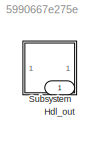
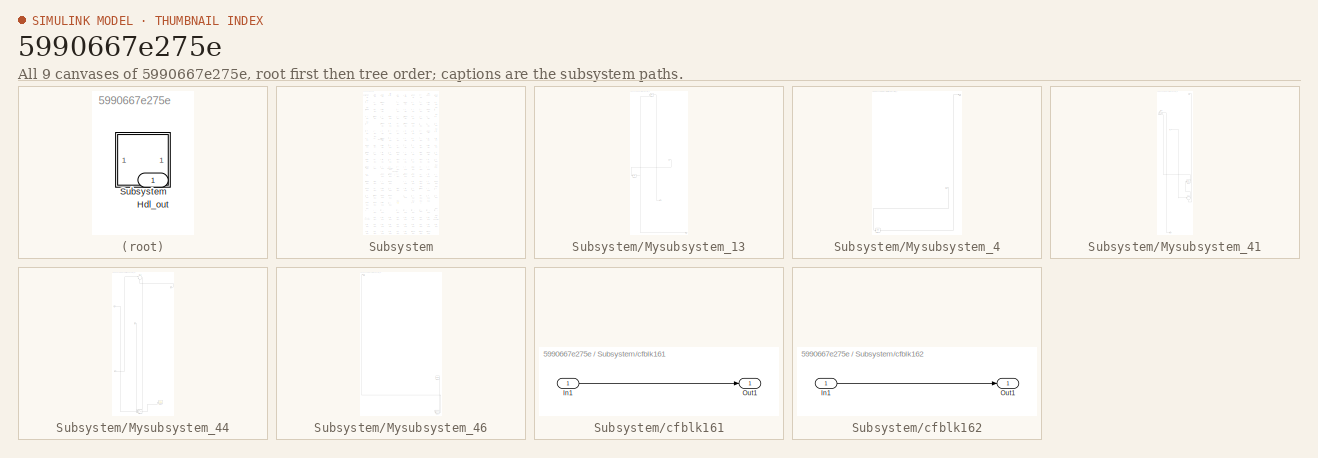
[diagram: thumbnail index - all 9 canvases of the model, root first then tree order]
MODEL slx_5990667e275e
KIND model
CONFIG AbsTol = auto
CONFIG EnableMultiTasking = off
CONFIG FixedStep = auto
CONFIG MaxStep = auto
CONFIG MinStep = auto
CONFIG RelTol = 1e-3
CONFIG SampleTimeConstraint = Unconstrained
CONFIG SolverName = VariableStepAuto
CONFIG StartTime = 0.0
CONFIG StopTime = 10.0
BLOCK [Outport] Hdl_out
  OutDataTypeStr = uint8
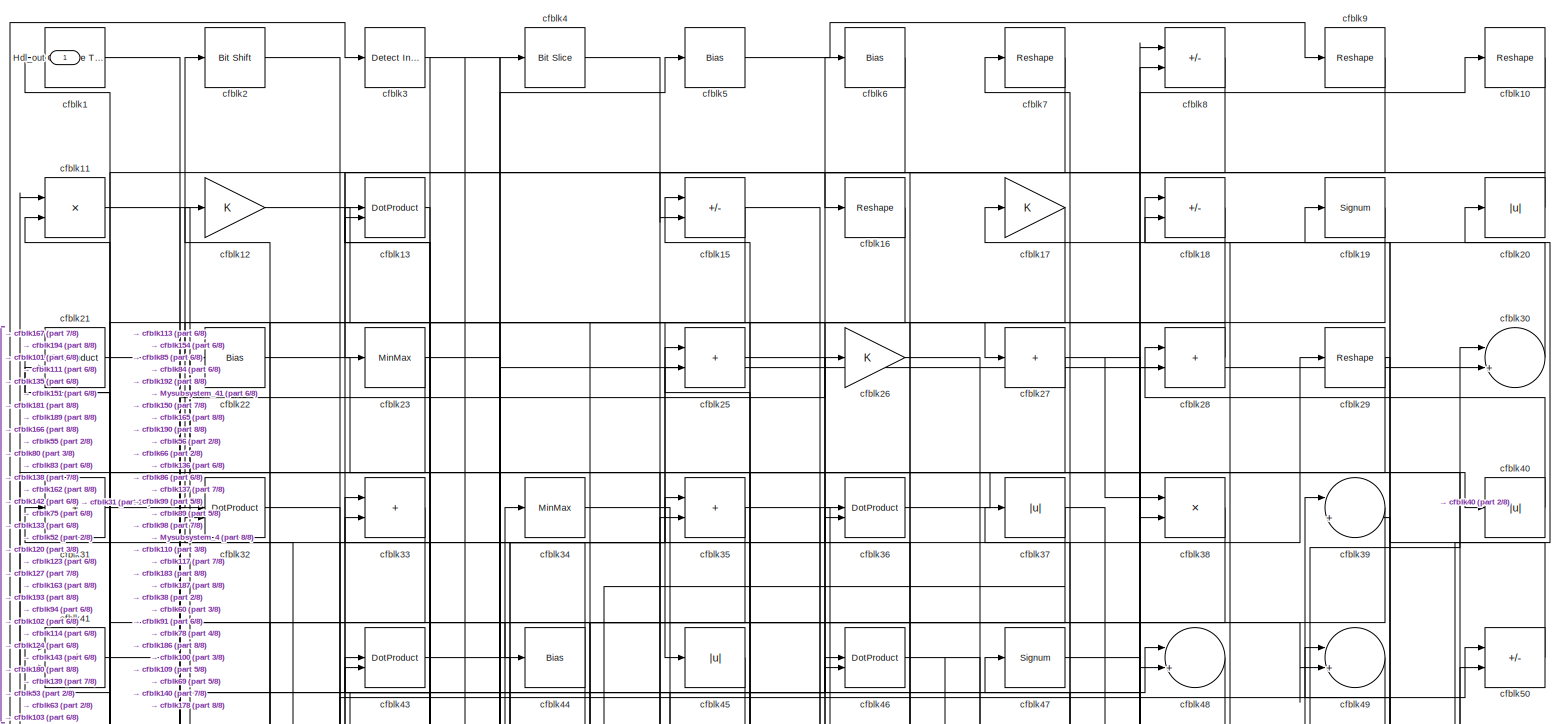
[diagram: Subsystem - part 1/8, full width, top band]
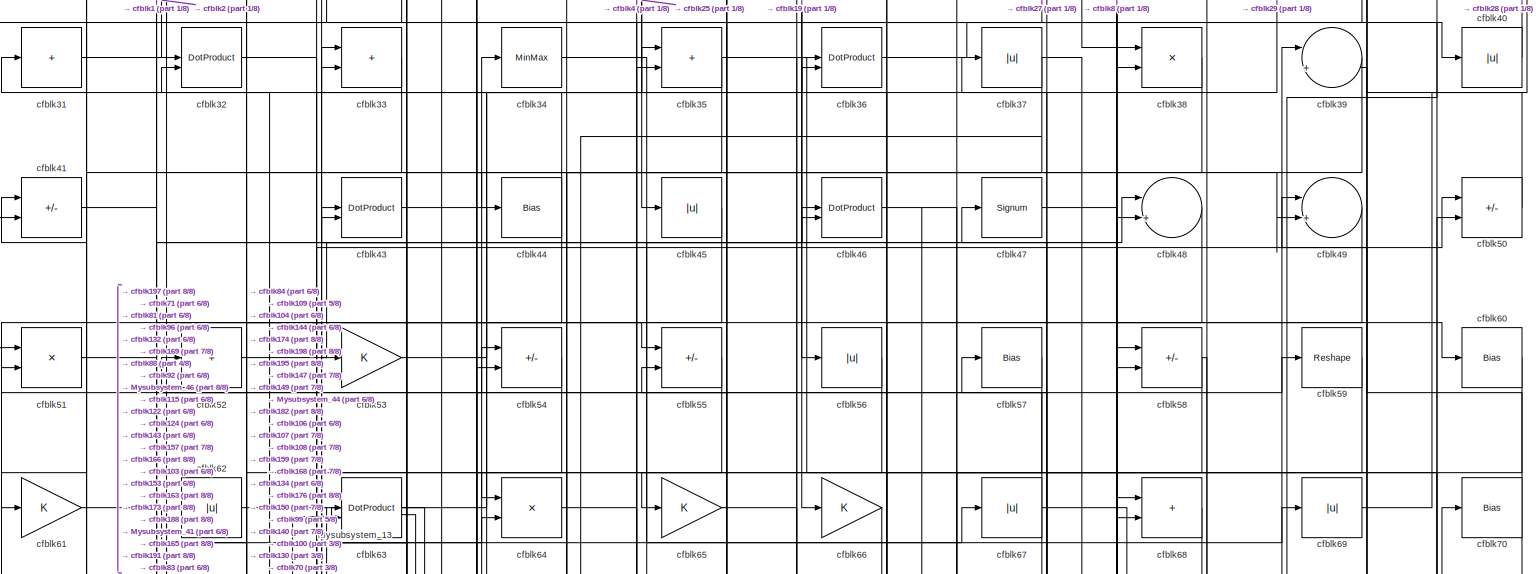
[diagram: Subsystem - part 2/8, full width, top band]
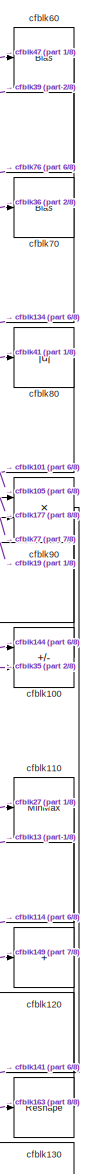
[diagram: Subsystem - part 3/8, middle right region]
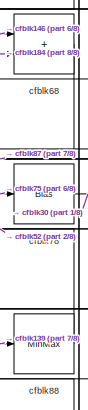
[diagram: Subsystem - part 4/8, middle right region]
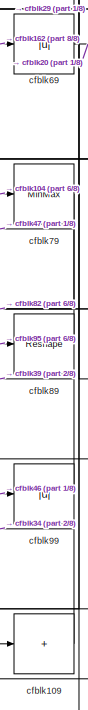
[diagram: Subsystem - part 5/8, middle right region]
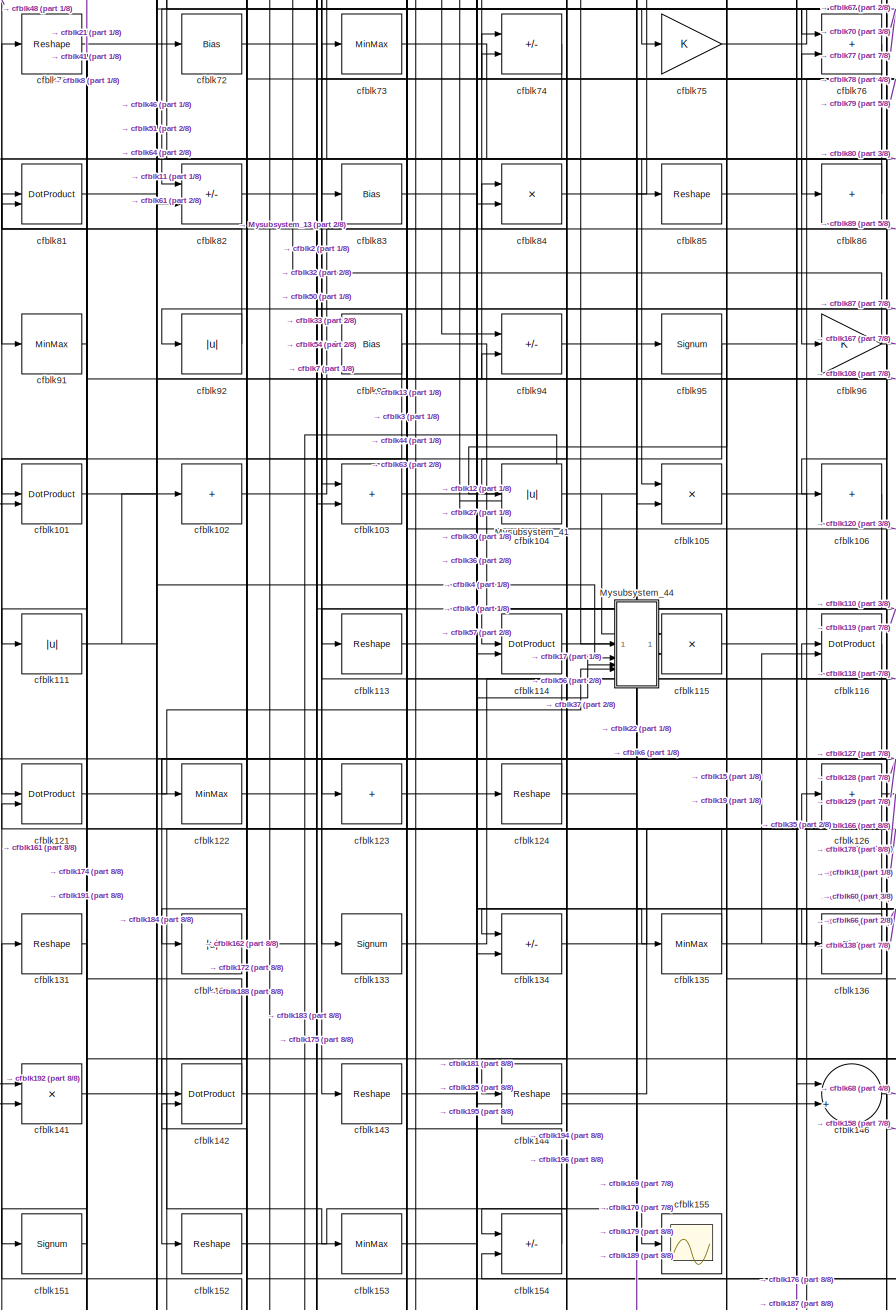
[diagram: Subsystem - part 6/8, middle left region]
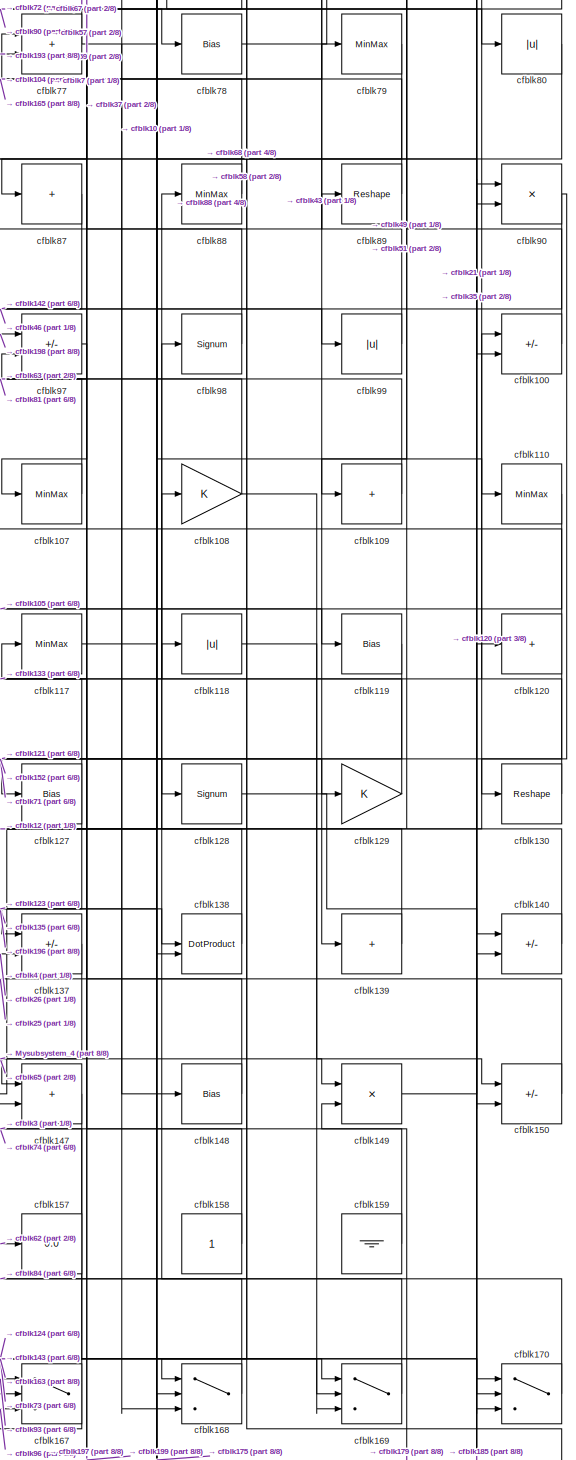
[diagram: Subsystem - part 7/8, middle right region]
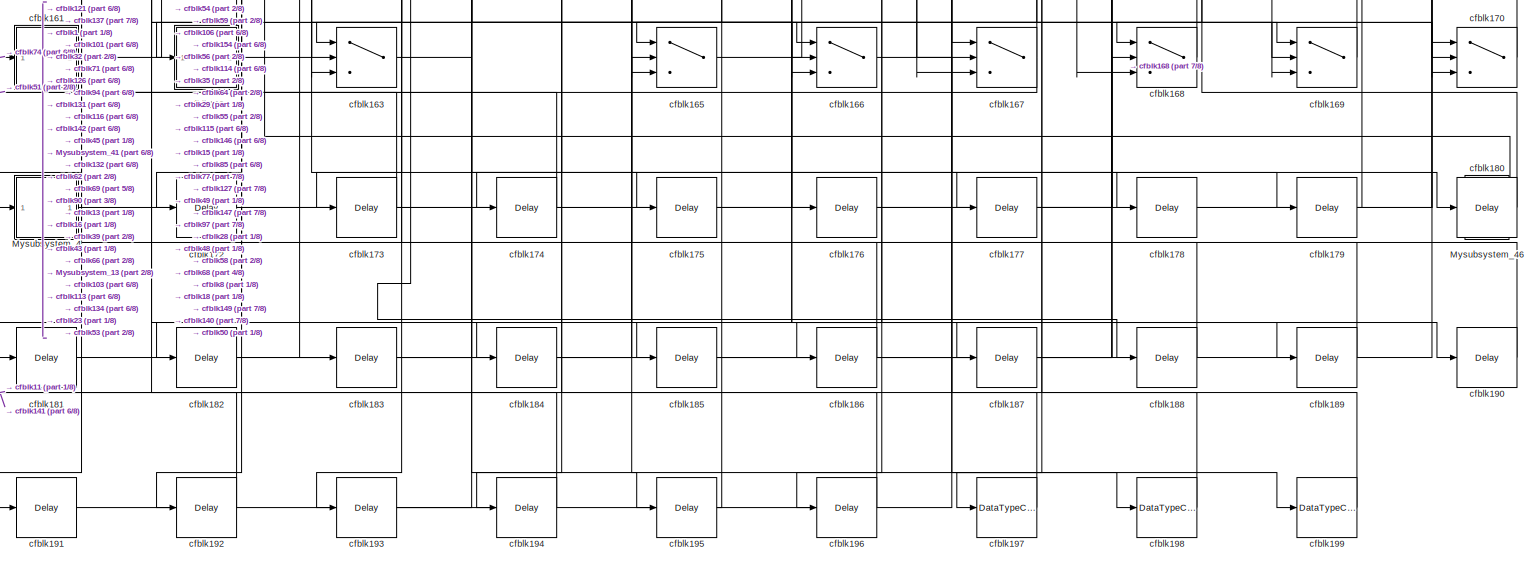
[diagram: Subsystem - part 8/8, full width, bottom band]
BLOCK [SubSystem] Subsystem
BLOCK [Outport] Subsystem/Hdl_out
  OutDataTypeStr = uint8
BLOCK [SubSystem] Subsystem/Mysubsystem_13
  RTWFcnName = Mysubsystem_13
  RTWFcnNameOpts = User specified
  RTWFileNameOpts = Use function name
  RTWSystemCode = Reusable function
  TreatAsAtomicUnit = on
BLOCK [Inport] Subsystem/Mysubsystem_13/In1
BLOCK [Outport] Subsystem/Mysubsystem_13/Out1
BLOCK [Outport] Subsystem/Mysubsystem_13/Out2
  Port = 2
BLOCK [Bias] Subsystem/Mysubsystem_13/cfblk112
  Bias = 0.0
  SaturateOnIntegerOverflow = off
BLOCK [Bias] Subsystem/Mysubsystem_13/cfblk14
  Bias = 0.0
  SaturateOnIntegerOverflow = off
BLOCK [SubSystem] Subsystem/Mysubsystem_4
  RTWFcnName = Mysubsystem_4
  RTWFcnNameOpts = User specified
  RTWFileNameOpts = Use function name
  RTWSystemCode = Reusable function
  TreatAsAtomicUnit = on
BLOCK [Inport] Subsystem/Mysubsystem_4/In1
BLOCK [Outport] Subsystem/Mysubsystem_4/Out1
BLOCK [Delay] Subsystem/Mysubsystem_4/cfblk171
  InputPortMap = u0
  SampleTime = 1
BLOCK [SubSystem] Subsystem/Mysubsystem_41
  RTWFcnName = Mysubsystem_41
  RTWFcnNameOpts = User specified
  RTWFileNameOpts = Use function name
  RTWSystemCode = Reusable function
  TreatAsAtomicUnit = on
BLOCK [Inport] Subsystem/Mysubsystem_41/In1
BLOCK [Inport] Subsystem/Mysubsystem_41/In2
  Port = 2
BLOCK [Outport] Subsystem/Mysubsystem_41/Out1
BLOCK [MinMax] Subsystem/Mysubsystem_41/cfblk125
BLOCK [Sum] Subsystem/Mysubsystem_41/cfblk145
  Inputs = |++
BLOCK [Gain] Subsystem/Mysubsystem_41/cfblk42
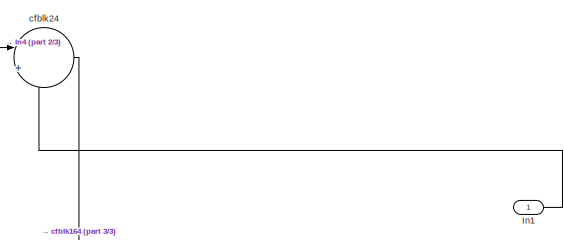
[diagram: Subsystem/Mysubsystem_44 - part 1/3, top right region]
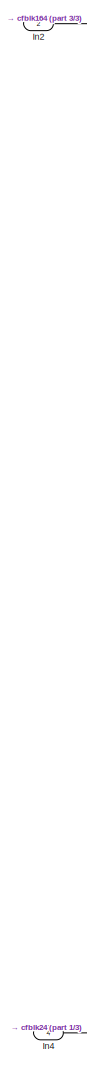
[diagram: Subsystem/Mysubsystem_44 - part 2/3, middle left region]
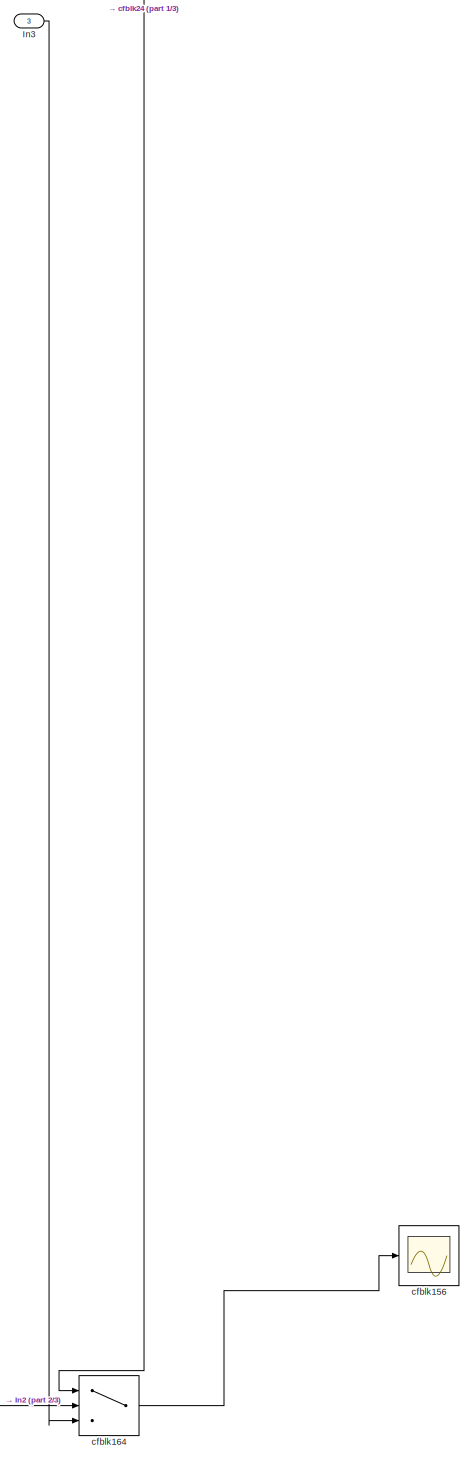
[diagram: Subsystem/Mysubsystem_44 - part 3/3, bottom center region]
BLOCK [SubSystem] Subsystem/Mysubsystem_44
  RTWFcnName = Mysubsystem_44
  RTWFcnNameOpts = User specified
  RTWFileNameOpts = Use function name
  RTWSystemCode = Reusable function
  TreatAsAtomicUnit = on
BLOCK [Inport] Subsystem/Mysubsystem_44/In1
BLOCK [Inport] Subsystem/Mysubsystem_44/In2
  Port = 2
BLOCK [Inport] Subsystem/Mysubsystem_44/In3
  Port = 3
BLOCK [Inport] Subsystem/Mysubsystem_44/In4
  Port = 4
BLOCK [Scope] Subsystem/Mysubsystem_44/cfblk156
  Floating = off
  NumInputPorts = 1
  ScopeSpecificationString = Simulink.scopes.TimeScopeBlockCfg('CurrentConfiguration', extmgr.ConfigurationSet(extmgr.Configuration('Core','General UI',true),extmgr.Configuration('Core','Source UI',true),extmgr.Configuration('Sources','WiredSimulink',true,'DataLoggingVariableName','ScopeData2','DataLoggingSaveFormat','Array','DataLoggingLimitDataPoints',true,'DataLoggingDecimation','1'),extmgr.Configuration('Visuals','Time Do...<+868ch>
BLOCK [Switch] Subsystem/Mysubsystem_44/cfblk164
  InputSameDT = off
  SaturateOnIntegerOverflow = off
BLOCK [Sum] Subsystem/Mysubsystem_44/cfblk24
  Inputs = |++
BLOCK [SubSystem] Subsystem/Mysubsystem_46
  RTWFcnName = Mysubsystem_46
  RTWFcnNameOpts = User specified
  RTWFileNameOpts = Use function name
  RTWSystemCode = Reusable function
  TreatAsAtomicUnit = on
BLOCK [Outport] Subsystem/Mysubsystem_46/Out1
BLOCK [Reference] Subsystem/Mysubsystem_46/cfblk160  REF=hdlsllib/Sources/Counter
Free-Running
  SourceBlock = hdlsllib/Sources/Counter\nFree-Running
  SourceType = Counter Free-Running
BLOCK [DataTypeConversion] Subsystem/Mysubsystem_46/cfblk200
  OutDataTypeStr = uint8
  RndMeth = Floor
  SaturateOnIntegerOverflow = off
BLOCK [Reference] Subsystem/cfblk1  REF=hdlsllib/Logic and Bit
Operations/Compare
To Constant
  SourceBlock = hdlsllib/Logic and Bit\nOperations/Compare\nTo Constant
  SourceType = Compare To Constant
BLOCK [Reshape] Subsystem/cfblk10
BLOCK [Sum] Subsystem/cfblk100
  IconShape = rectangular
  Inputs = +-
  OutDataTypeStr = uint8
BLOCK [DotProduct] Subsystem/cfblk101
  OutDataTypeStr = uint8
BLOCK [Sum] Subsystem/cfblk102
  IconShape = rectangular
  Inputs = +
  OutDataTypeStr = uint8
BLOCK [Sum] Subsystem/cfblk103
  IconShape = rectangular
  OutDataTypeStr = uint8
BLOCK [Abs] Subsystem/cfblk104
  OutDataTypeStr = uint8
  SaturateOnIntegerOverflow = off
BLOCK [Product] Subsystem/cfblk105
  Inputs = */
  OutDataTypeStr = uint8
  RndMeth = Zero
  SaturateOnIntegerOverflow = on
BLOCK [Sum] Subsystem/cfblk106
  IconShape = rectangular
  Inputs = +
  OutDataTypeStr = uint8
BLOCK [MinMax] Subsystem/cfblk107
  OutDataTypeStr = uint8
BLOCK [Gain] Subsystem/cfblk108
  OutDataTypeStr = uint8
BLOCK [Sum] Subsystem/cfblk109
  IconShape = rectangular
  Inputs = +
  OutDataTypeStr = uint8
BLOCK [Product] Subsystem/cfblk11
  Inputs = */
  OutDataTypeStr = uint8
  RndMeth = Zero
  SaturateOnIntegerOverflow = on
BLOCK [MinMax] Subsystem/cfblk110
  OutDataTypeStr = uint8
BLOCK [Abs] Subsystem/cfblk111
  OutDataTypeStr = uint8
  SaturateOnIntegerOverflow = off
BLOCK [Reshape] Subsystem/cfblk113
BLOCK [DotProduct] Subsystem/cfblk114
  OutDataTypeStr = uint8
BLOCK [Product] Subsystem/cfblk115
  Inputs = */
  OutDataTypeStr = uint8
  RndMeth = Zero
  SaturateOnIntegerOverflow = on
BLOCK [DotProduct] Subsystem/cfblk116
  OutDataTypeStr = uint8
BLOCK [MinMax] Subsystem/cfblk117
  OutDataTypeStr = uint8
BLOCK [Abs] Subsystem/cfblk118
  OutDataTypeStr = uint8
  SaturateOnIntegerOverflow = off
BLOCK [Bias] Subsystem/cfblk119
  Bias = 0.0
  SaturateOnIntegerOverflow = off
BLOCK [Gain] Subsystem/cfblk12
  OutDataTypeStr = uint8
BLOCK [Sum] Subsystem/cfblk120
  IconShape = rectangular
  Inputs = +
  OutDataTypeStr = uint8
BLOCK [DotProduct] Subsystem/cfblk121
  OutDataTypeStr = uint8
BLOCK [MinMax] Subsystem/cfblk122
  OutDataTypeStr = uint8
BLOCK [Sum] Subsystem/cfblk123
  IconShape = rectangular
  Inputs = +
  OutDataTypeStr = uint8
BLOCK [Reshape] Subsystem/cfblk124
BLOCK [Sum] Subsystem/cfblk126
  IconShape = rectangular
  Inputs = +
  OutDataTypeStr = uint8
BLOCK [Bias] Subsystem/cfblk127
  Bias = 0.0
  SaturateOnIntegerOverflow = off
BLOCK [Signum] Subsystem/cfblk128
BLOCK [Gain] Subsystem/cfblk129
  OutDataTypeStr = uint8
BLOCK [DotProduct] Subsystem/cfblk13
  OutDataTypeStr = uint8
BLOCK [Reshape] Subsystem/cfblk130
BLOCK [Reshape] Subsystem/cfblk131
BLOCK [Abs] Subsystem/cfblk132
  OutDataTypeStr = uint8
  SaturateOnIntegerOverflow = off
BLOCK [Signum] Subsystem/cfblk133
BLOCK [Sum] Subsystem/cfblk134
  IconShape = rectangular
  Inputs = +-
  OutDataTypeStr = uint8
BLOCK [MinMax] Subsystem/cfblk135
  OutDataTypeStr = uint8
BLOCK [Bias] Subsystem/cfblk136
  Bias = 0.0
  SaturateOnIntegerOverflow = off
BLOCK [Sum] Subsystem/cfblk137
  IconShape = rectangular
  Inputs = +-
  OutDataTypeStr = uint8
BLOCK [DotProduct] Subsystem/cfblk138
  OutDataTypeStr = uint8
BLOCK [Sum] Subsystem/cfblk139
  IconShape = rectangular
  Inputs = +
  OutDataTypeStr = uint8
BLOCK [Sum] Subsystem/cfblk140
  IconShape = rectangular
  Inputs = +-
  OutDataTypeStr = uint8
BLOCK [Product] Subsystem/cfblk141
  Inputs = */
  OutDataTypeStr = uint8
  RndMeth = Zero
  SaturateOnIntegerOverflow = on
BLOCK [DotProduct] Subsystem/cfblk142
  OutDataTypeStr = uint8
BLOCK [Reshape] Subsystem/cfblk143
BLOCK [Reshape] Subsystem/cfblk144
BLOCK [Sum] Subsystem/cfblk146
  Inputs = |++
  OutDataTypeStr = uint8
BLOCK [Sum] Subsystem/cfblk147
  IconShape = rectangular
  OutDataTypeStr = uint8
BLOCK [Bias] Subsystem/cfblk148
  Bias = 0.0
  SaturateOnIntegerOverflow = off
BLOCK [Product] Subsystem/cfblk149
  Inputs = */
  OutDataTypeStr = uint8
  RndMeth = Zero
  SaturateOnIntegerOverflow = on
BLOCK [Sum] Subsystem/cfblk15
  IconShape = rectangular
  Inputs = +-
  OutDataTypeStr = uint8
BLOCK [Sum] Subsystem/cfblk150
  IconShape = rectangular
  Inputs = +-
  OutDataTypeStr = uint8
BLOCK [Signum] Subsystem/cfblk151
BLOCK [Reshape] Subsystem/cfblk152
BLOCK [MinMax] Subsystem/cfblk153
  OutDataTypeStr = uint8
BLOCK [Sum] Subsystem/cfblk154
  IconShape = rectangular
  Inputs = +-
  OutDataTypeStr = uint8
BLOCK [Scope] Subsystem/cfblk155
  Floating = off
  NumInputPorts = 1
  ScopeSpecificationString = Simulink.scopes.TimeScopeBlockCfg('CurrentConfiguration', extmgr.ConfigurationSet(extmgr.Configuration('Core','General UI',true),extmgr.Configuration('Core','Source UI',true),extmgr.Configuration('Sources','WiredSimulink',true,'DataLoggingVariableName','ScopeData1','DataLoggingSaveFormat','Array','DataLoggingLimitDataPoints',true,'DataLoggingDecimation','1'),extmgr.Configuration('Visuals','Time Do...<+868ch>
BLOCK [Display] Subsystem/cfblk157
  Decimation = 1
BLOCK [Constant] Subsystem/cfblk158
  OutDataTypeStr = uint8
  SampleTime = -1
BLOCK [Ground] Subsystem/cfblk159
BLOCK [Reshape] Subsystem/cfblk16
BLOCK [SubSystem] Subsystem/cfblk161
  LibrarySourceBlock = hdlsllib/Ports &\nSubsystems/Subsystem
BLOCK [Inport] Subsystem/cfblk161/In1
BLOCK [Outport] Subsystem/cfblk161/Out1
BLOCK [SubSystem] Subsystem/cfblk162
  LibrarySourceBlock = hdlsllib/Ports &\nSubsystems/Subsystem
BLOCK [Inport] Subsystem/cfblk162/In1
BLOCK [Outport] Subsystem/cfblk162/Out1
BLOCK [Switch] Subsystem/cfblk163
  InputSameDT = off
  OutDataTypeStr = uint8
  SaturateOnIntegerOverflow = off
BLOCK [Switch] Subsystem/cfblk165
  InputSameDT = off
  OutDataTypeStr = uint8
  SaturateOnIntegerOverflow = off
BLOCK [Switch] Subsystem/cfblk166
  InputSameDT = off
  OutDataTypeStr = uint8
  SaturateOnIntegerOverflow = off
BLOCK [Switch] Subsystem/cfblk167
  InputSameDT = off
  OutDataTypeStr = uint8
  SaturateOnIntegerOverflow = off
BLOCK [Switch] Subsystem/cfblk168
  InputSameDT = off
  OutDataTypeStr = uint8
  SaturateOnIntegerOverflow = off
BLOCK [Switch] Subsystem/cfblk169
  InputSameDT = off
  OutDataTypeStr = uint8
  SaturateOnIntegerOverflow = off
BLOCK [Gain] Subsystem/cfblk17
  OutDataTypeStr = uint8
BLOCK [Switch] Subsystem/cfblk170
  InputSameDT = off
  OutDataTypeStr = uint8
  SaturateOnIntegerOverflow = off
BLOCK [Delay] Subsystem/cfblk172
  InputPortMap = u0
  SampleTime = 1
BLOCK [Delay] Subsystem/cfblk173
  InputPortMap = u0
  SampleTime = 1
BLOCK [Delay] Subsystem/cfblk174
  InputPortMap = u0
  SampleTime = 1
BLOCK [Delay] Subsystem/cfblk175
  InputPortMap = u0
  SampleTime = 1
BLOCK [Delay] Subsystem/cfblk176
  InputPortMap = u0
  SampleTime = 1
BLOCK [Delay] Subsystem/cfblk177
  InputPortMap = u0
  SampleTime = 1
BLOCK [Delay] Subsystem/cfblk178
  InputPortMap = u0
  SampleTime = 1
BLOCK [Delay] Subsystem/cfblk179
  InputPortMap = u0
  SampleTime = 1
BLOCK [Sum] Subsystem/cfblk18
  IconShape = rectangular
  Inputs = +-
  OutDataTypeStr = uint8
BLOCK [Delay] Subsystem/cfblk180
  InputPortMap = u0
  SampleTime = 1
BLOCK [Delay] Subsystem/cfblk181
  InputPortMap = u0
  SampleTime = 1
BLOCK [Delay] Subsystem/cfblk182
  InputPortMap = u0
  SampleTime = 1
BLOCK [Delay] Subsystem/cfblk183
  InputPortMap = u0
  SampleTime = 1
BLOCK [Delay] Subsystem/cfblk184
  InputPortMap = u0
  SampleTime = 1
BLOCK [Delay] Subsystem/cfblk185
  InputPortMap = u0
  SampleTime = 1
BLOCK [Delay] Subsystem/cfblk186
  InputPortMap = u0
  SampleTime = 1
BLOCK [Delay] Subsystem/cfblk187
  InputPortMap = u0
  SampleTime = 1
BLOCK [Delay] Subsystem/cfblk188
  InputPortMap = u0
  SampleTime = 1
BLOCK [Delay] Subsystem/cfblk189
  InputPortMap = u0
  SampleTime = 1
BLOCK [Signum] Subsystem/cfblk19
BLOCK [Delay] Subsystem/cfblk190
  InputPortMap = u0
  SampleTime = 1
BLOCK [Delay] Subsystem/cfblk191
  InputPortMap = u0
  SampleTime = 1
BLOCK [Delay] Subsystem/cfblk192
  InputPortMap = u0
  SampleTime = 1
BLOCK [Delay] Subsystem/cfblk193
  InputPortMap = u0
  SampleTime = 1
BLOCK [Delay] Subsystem/cfblk194
  InputPortMap = u0
  SampleTime = 1
BLOCK [Delay] Subsystem/cfblk195
  InputPortMap = u0
  SampleTime = 1
BLOCK [Delay] Subsystem/cfblk196
  InputPortMap = u0
  SampleTime = 1
BLOCK [DataTypeConversion] Subsystem/cfblk197
  OutDataTypeStr = uint8
  RndMeth = Floor
  SaturateOnIntegerOverflow = off
BLOCK [DataTypeConversion] Subsystem/cfblk198
  OutDataTypeStr = uint8
  RndMeth = Floor
  SaturateOnIntegerOverflow = off
BLOCK [DataTypeConversion] Subsystem/cfblk199
  OutDataTypeStr = uint8
  RndMeth = Floor
  SaturateOnIntegerOverflow = off
BLOCK [Reference] Subsystem/cfblk2  REF=hdlsllib/Logic and Bit
Operations/Bit Shift
  SourceBlock = hdlsllib/Logic and Bit\nOperations/Bit Shift
  SourceType = Bit Shift
BLOCK [Abs] Subsystem/cfblk20
  OutDataTypeStr = uint8
  SaturateOnIntegerOverflow = off
BLOCK [DotProduct] Subsystem/cfblk21
  OutDataTypeStr = uint8
BLOCK [Bias] Subsystem/cfblk22
  Bias = 0.0
  SaturateOnIntegerOverflow = off
BLOCK [MinMax] Subsystem/cfblk23
  OutDataTypeStr = uint8
BLOCK [Sum] Subsystem/cfblk25
  IconShape = rectangular
  OutDataTypeStr = uint8
BLOCK [Gain] Subsystem/cfblk26
  OutDataTypeStr = uint8
BLOCK [Sum] Subsystem/cfblk27
  IconShape = rectangular
  Inputs = +
  OutDataTypeStr = uint8
BLOCK [Sum] Subsystem/cfblk28
  IconShape = rectangular
  OutDataTypeStr = uint8
BLOCK [Reshape] Subsystem/cfblk29
BLOCK [Reference] Subsystem/cfblk3  REF=simulink/Logic and Bit
Operations/Detect
Increase
  LibrarySourceBlock = hdlsllib/Logic and Bit\nOperations/Detect\nIncrease
  SourceBlock = simulink/Logic and Bit\nOperations/Detect\nIncrease
  SourceType = Detect Increase
BLOCK [Sum] Subsystem/cfblk30
  Inputs = |++
  OutDataTypeStr = uint8
BLOCK [Sum] Subsystem/cfblk31
  IconShape = rectangular
  Inputs = +
  OutDataTypeStr = uint8
BLOCK [DotProduct] Subsystem/cfblk32
  OutDataTypeStr = uint8
BLOCK [Sum] Subsystem/cfblk33
  IconShape = rectangular
  OutDataTypeStr = uint8
BLOCK [MinMax] Subsystem/cfblk34
  OutDataTypeStr = uint8
BLOCK [Sum] Subsystem/cfblk35
  IconShape = rectangular
  OutDataTypeStr = uint8
BLOCK [DotProduct] Subsystem/cfblk36
  OutDataTypeStr = uint8
BLOCK [Abs] Subsystem/cfblk37
  OutDataTypeStr = uint8
  SaturateOnIntegerOverflow = off
BLOCK [Product] Subsystem/cfblk38
  Inputs = */
  OutDataTypeStr = uint8
  RndMeth = Zero
  SaturateOnIntegerOverflow = on
BLOCK [Sum] Subsystem/cfblk39
  Inputs = |++
  OutDataTypeStr = uint8
BLOCK [Reference] Subsystem/cfblk4  REF=hdlsllib/Logic and Bit
Operations/Bit Slice
  SourceBlock = hdlsllib/Logic and Bit\nOperations/Bit Slice
  SourceType = Bit Slice
BLOCK [Abs] Subsystem/cfblk40
  OutDataTypeStr = uint8
  SaturateOnIntegerOverflow = off
BLOCK [Sum] Subsystem/cfblk41
  IconShape = rectangular
  Inputs = +-
  OutDataTypeStr = uint8
BLOCK [DotProduct] Subsystem/cfblk43
  OutDataTypeStr = uint8
BLOCK [Bias] Subsystem/cfblk44
  Bias = 0.0
  SaturateOnIntegerOverflow = off
BLOCK [Abs] Subsystem/cfblk45
  OutDataTypeStr = uint8
  SaturateOnIntegerOverflow = off
BLOCK [DotProduct] Subsystem/cfblk46
  OutDataTypeStr = uint8
BLOCK [Signum] Subsystem/cfblk47
BLOCK [Sum] Subsystem/cfblk48
  Inputs = |++
  OutDataTypeStr = uint8
BLOCK [Sum] Subsystem/cfblk49
  Inputs = |++
  OutDataTypeStr = uint8
BLOCK [Bias] Subsystem/cfblk5
  Bias = 0.0
  SaturateOnIntegerOverflow = off
BLOCK [Sum] Subsystem/cfblk50
  IconShape = rectangular
  Inputs = +-
  OutDataTypeStr = uint8
BLOCK [Product] Subsystem/cfblk51
  Inputs = */
  OutDataTypeStr = uint8
  RndMeth = Zero
  SaturateOnIntegerOverflow = on
BLOCK [Sum] Subsystem/cfblk52
  IconShape = rectangular
  Inputs = +
  OutDataTypeStr = uint8
BLOCK [Gain] Subsystem/cfblk53
  OutDataTypeStr = uint8
BLOCK [Sum] Subsystem/cfblk54
  IconShape = rectangular
  Inputs = +-
  OutDataTypeStr = uint8
BLOCK [Sum] Subsystem/cfblk55
  IconShape = rectangular
  Inputs = +-
  OutDataTypeStr = uint8
BLOCK [Abs] Subsystem/cfblk56
  OutDataTypeStr = uint8
  SaturateOnIntegerOverflow = off
BLOCK [Bias] Subsystem/cfblk57
  Bias = 0.0
  SaturateOnIntegerOverflow = off
BLOCK [Sum] Subsystem/cfblk58
  IconShape = rectangular
  Inputs = +-
  OutDataTypeStr = uint8
BLOCK [Reshape] Subsystem/cfblk59
BLOCK [Bias] Subsystem/cfblk6
  Bias = 0.0
  SaturateOnIntegerOverflow = off
BLOCK [Bias] Subsystem/cfblk60
  Bias = 0.0
  SaturateOnIntegerOverflow = off
BLOCK [Gain] Subsystem/cfblk61
  OutDataTypeStr = uint8
BLOCK [Abs] Subsystem/cfblk62
  OutDataTypeStr = uint8
  SaturateOnIntegerOverflow = off
BLOCK [DotProduct] Subsystem/cfblk63
  OutDataTypeStr = uint8
BLOCK [Product] Subsystem/cfblk64
  Inputs = */
  OutDataTypeStr = uint8
  RndMeth = Zero
  SaturateOnIntegerOverflow = on
BLOCK [Gain] Subsystem/cfblk65
  OutDataTypeStr = uint8
BLOCK [Gain] Subsystem/cfblk66
  OutDataTypeStr = uint8
BLOCK [Abs] Subsystem/cfblk67
  OutDataTypeStr = uint8
  SaturateOnIntegerOverflow = off
BLOCK [Sum] Subsystem/cfblk68
  IconShape = rectangular
  OutDataTypeStr = uint8
BLOCK [Abs] Subsystem/cfblk69
  OutDataTypeStr = uint8
  SaturateOnIntegerOverflow = off
BLOCK [Reshape] Subsystem/cfblk7
BLOCK [Bias] Subsystem/cfblk70
  Bias = 0.0
  SaturateOnIntegerOverflow = off
BLOCK [Reshape] Subsystem/cfblk71
BLOCK [Bias] Subsystem/cfblk72
  Bias = 0.0
  SaturateOnIntegerOverflow = off
BLOCK [MinMax] Subsystem/cfblk73
  OutDataTypeStr = uint8
BLOCK [Sum] Subsystem/cfblk74
  IconShape = rectangular
  Inputs = +-
  OutDataTypeStr = uint8
BLOCK [Gain] Subsystem/cfblk75
  OutDataTypeStr = uint8
BLOCK [Sum] Subsystem/cfblk76
  IconShape = rectangular
  OutDataTypeStr = uint8
BLOCK [Sum] Subsystem/cfblk77
  IconShape = rectangular
  OutDataTypeStr = uint8
BLOCK [Bias] Subsystem/cfblk78
  Bias = 0.0
  SaturateOnIntegerOverflow = off
BLOCK [MinMax] Subsystem/cfblk79
  OutDataTypeStr = uint8
BLOCK [Sum] Subsystem/cfblk8
  IconShape = rectangular
  Inputs = +-
  OutDataTypeStr = uint8
BLOCK [Abs] Subsystem/cfblk80
  OutDataTypeStr = uint8
  SaturateOnIntegerOverflow = off
BLOCK [DotProduct] Subsystem/cfblk81
  OutDataTypeStr = uint8
BLOCK [Sum] Subsystem/cfblk82
  IconShape = rectangular
  Inputs = +-
  OutDataTypeStr = uint8
BLOCK [Bias] Subsystem/cfblk83
  Bias = 0.0
  SaturateOnIntegerOverflow = off
BLOCK [Product] Subsystem/cfblk84
  Inputs = */
  OutDataTypeStr = uint8
  RndMeth = Zero
  SaturateOnIntegerOverflow = on
BLOCK [Reshape] Subsystem/cfblk85
BLOCK [Sum] Subsystem/cfblk86
  IconShape = rectangular
  Inputs = +
  OutDataTypeStr = uint8
BLOCK [Sum] Subsystem/cfblk87
  IconShape = rectangular
  Inputs = +
  OutDataTypeStr = uint8
BLOCK [MinMax] Subsystem/cfblk88
  OutDataTypeStr = uint8
BLOCK [Reshape] Subsystem/cfblk89
BLOCK [Reshape] Subsystem/cfblk9
BLOCK [Product] Subsystem/cfblk90
  Inputs = */
  OutDataTypeStr = uint8
  RndMeth = Zero
  SaturateOnIntegerOverflow = on
BLOCK [MinMax] Subsystem/cfblk91
  OutDataTypeStr = uint8
BLOCK [Abs] Subsystem/cfblk92
  OutDataTypeStr = uint8
  SaturateOnIntegerOverflow = off
BLOCK [Bias] Subsystem/cfblk93
  Bias = 0.0
  SaturateOnIntegerOverflow = off
BLOCK [Sum] Subsystem/cfblk94
  IconShape = rectangular
  Inputs = +-
  OutDataTypeStr = uint8
BLOCK [Signum] Subsystem/cfblk95
BLOCK [Gain] Subsystem/cfblk96
  OutDataTypeStr = uint8
BLOCK [Sum] Subsystem/cfblk97
  IconShape = rectangular
  Inputs = +-
  OutDataTypeStr = uint8
BLOCK [Signum] Subsystem/cfblk98
BLOCK [Abs] Subsystem/cfblk99
  OutDataTypeStr = uint8
  SaturateOnIntegerOverflow = off
LINE Subsystem/Mysubsystem_13/In1:1 -> Subsystem/Mysubsystem_13/cfblk112:1
NET Subsystem/Mysubsystem_13/cfblk112:1 -> Subsystem/Mysubsystem_13/Out2:1, Subsystem/Mysubsystem_13/cfblk14:1
LINE Subsystem/Mysubsystem_13/cfblk14:1 -> Subsystem/Mysubsystem_13/Out1:1
LINE Subsystem/Mysubsystem_13:1 -> Subsystem/Mysubsystem_41:2
LINE Subsystem/Mysubsystem_13:2 -> Subsystem/cfblk188:1
LINE Subsystem/Mysubsystem_4/In1:1 -> Subsystem/Mysubsystem_4/cfblk171:1
LINE Subsystem/Mysubsystem_4/cfblk171:1 -> Subsystem/Mysubsystem_4/Out1:1
LINE Subsystem/Mysubsystem_41/In1:1 -> Subsystem/Mysubsystem_41/cfblk145:2
LINE Subsystem/Mysubsystem_41/In2:1 -> Subsystem/Mysubsystem_41/cfblk145:1
LINE Subsystem/Mysubsystem_41/cfblk125:1 -> Subsystem/Mysubsystem_41/cfblk42:1
LINE Subsystem/Mysubsystem_41/cfblk145:1 -> Subsystem/Mysubsystem_41/cfblk125:1
LINE Subsystem/Mysubsystem_41/cfblk42:1 -> Subsystem/Mysubsystem_41/Out1:1
LINE Subsystem/Mysubsystem_41:1 -> Subsystem/cfblk183:1
LINE Subsystem/Mysubsystem_44/In1:1 -> Subsystem/Mysubsystem_44/cfblk24:2
LINE Subsystem/Mysubsystem_44/In2:1 -> Subsystem/Mysubsystem_44/cfblk164:2
LINE Subsystem/Mysubsystem_44/In3:1 -> Subsystem/Mysubsystem_44/cfblk164:3
LINE Subsystem/Mysubsystem_44/In4:1 -> Subsystem/Mysubsystem_44/cfblk24:1
LINE Subsystem/Mysubsystem_44/cfblk164:1 -> Subsystem/Mysubsystem_44/cfblk156:1
LINE Subsystem/Mysubsystem_44/cfblk24:1 -> Subsystem/Mysubsystem_44/cfblk164:1
LINE Subsystem/Mysubsystem_46/cfblk160:1 -> Subsystem/Mysubsystem_46/cfblk200:1
LINE Subsystem/Mysubsystem_46/cfblk200:1 -> Subsystem/Mysubsystem_46/Out1:1
LINE Subsystem/Mysubsystem_46:1 -> Subsystem/cfblk32:2
LINE Subsystem/Mysubsystem_4:1 -> Subsystem/cfblk48:2
LINE Subsystem/cfblk100:1 -> Subsystem/cfblk19:1
NET Subsystem/cfblk101:1 -> Subsystem/cfblk184:1, Subsystem/cfblk46:2
LINE Subsystem/cfblk102:1 -> Subsystem/cfblk4:1
NET Subsystem/cfblk103:1 -> Subsystem/cfblk185:1, Subsystem/cfblk33:2
NET Subsystem/cfblk104:1 -> Subsystem/cfblk115:1, Subsystem/cfblk169:3, Subsystem/cfblk79:1
LINE Subsystem/cfblk105:1 -> Subsystem/cfblk119:1
LINE Subsystem/cfblk106:1 -> Subsystem/cfblk194:1
LINE Subsystem/cfblk107:1 -> Subsystem/cfblk63:1
NET Subsystem/cfblk108:1 -> Subsystem/cfblk170:3, Subsystem/cfblk57:1, Subsystem/cfblk81:2
LINE Subsystem/cfblk109:1 -> Subsystem/cfblk34:1
LINE Subsystem/cfblk10:1 -> Subsystem/cfblk86:1
LINE Subsystem/cfblk110:1 -> Subsystem/cfblk114:1
NET Subsystem/cfblk111:1 -> Subsystem/cfblk102:1, Subsystem/cfblk46:1, Subsystem/cfblk48:1
LINE Subsystem/cfblk113:1 -> Subsystem/cfblk195:1
LINE Subsystem/cfblk114:1 -> Subsystem/cfblk189:1
LINE Subsystem/cfblk115:1 -> Subsystem/cfblk176:1
LINE Subsystem/cfblk116:1 -> Subsystem/cfblk172:1
LINE Subsystem/cfblk117:1 -> Subsystem/cfblk10:1
LINE Subsystem/cfblk118:1 -> Subsystem/cfblk150:1
LINE Subsystem/cfblk119:1 -> Subsystem/cfblk152:1
NET Subsystem/cfblk11:1 -> Subsystem/cfblk44:1, Subsystem/cfblk83:1
NET Subsystem/cfblk120:1 -> Subsystem/cfblk13:1, Subsystem/cfblk141:2
NET Subsystem/cfblk121:1 -> Subsystem/Mysubsystem_44:4, Subsystem/cfblk127:1
LINE Subsystem/cfblk122:1 -> Subsystem/cfblk35:1
LINE Subsystem/cfblk123:1 -> Subsystem/cfblk138:1
NET Subsystem/cfblk124:1 -> Subsystem/cfblk170:2, Subsystem/cfblk33:1
LINE Subsystem/cfblk126:1 -> Subsystem/cfblk178:1
NET Subsystem/cfblk127:1 -> Subsystem/cfblk196:1, Subsystem/cfblk43:1
LINE Subsystem/cfblk128:1 -> Subsystem/cfblk170:1
LINE Subsystem/cfblk129:1 -> Subsystem/cfblk108:1
LINE Subsystem/cfblk12:1 -> Subsystem/cfblk124:1
NET Subsystem/cfblk130:1 -> Subsystem/cfblk36:1, Subsystem/cfblk70:1
LINE Subsystem/cfblk131:1 -> Subsystem/cfblk191:1
LINE Subsystem/cfblk132:1 -> Subsystem/cfblk175:1
NET Subsystem/cfblk133:1 -> Subsystem/cfblk118:1, Subsystem/cfblk30:2
LINE Subsystem/cfblk134:1 -> Subsystem/cfblk58:1
NET Subsystem/cfblk135:1 -> Subsystem/cfblk116:2, Subsystem/cfblk137:1, Subsystem/cfblk21:2
LINE Subsystem/cfblk136:1 -> Subsystem/cfblk73:1
LINE Subsystem/cfblk137:1 -> Subsystem/Mysubsystem_4:1
LINE Subsystem/cfblk138:1 -> Subsystem/cfblk12:1
LINE Subsystem/cfblk139:1 -> Subsystem/cfblk88:1
LINE Subsystem/cfblk13:1 -> Subsystem/cfblk123:1
NET Subsystem/cfblk140:1 -> Subsystem/cfblk49:1, Subsystem/cfblk51:2
LINE Subsystem/cfblk141:1 -> Subsystem/cfblk153:1
NET Subsystem/cfblk142:1 -> Subsystem/cfblk41:1, Subsystem/cfblk50:1
NET Subsystem/cfblk143:1 -> Subsystem/cfblk169:2, Subsystem/cfblk5:1
LINE Subsystem/cfblk144:1 -> Subsystem/cfblk100:1
NET Subsystem/cfblk146:1 -> Subsystem/cfblk116:1, Subsystem/cfblk68:1
LINE Subsystem/cfblk147:1 -> Subsystem/cfblk163:2
LINE Subsystem/cfblk148:1 -> Subsystem/cfblk117:1
LINE Subsystem/cfblk149:1 -> Subsystem/cfblk120:1
LINE Subsystem/cfblk150:1 -> Subsystem/cfblk25:2
LINE Subsystem/cfblk151:1 -> Subsystem/cfblk11:2
LINE Subsystem/cfblk152:1 -> Subsystem/cfblk155:1
NET Subsystem/cfblk153:1 -> Subsystem/cfblk146:2, Subsystem/cfblk63:2
LINE Subsystem/cfblk154:1 -> Subsystem/cfblk93:1
LINE Subsystem/cfblk158:1 -> Subsystem/cfblk81:1
LINE Subsystem/cfblk159:1 -> Subsystem/cfblk37:1
NET Subsystem/cfblk15:1 -> Subsystem/cfblk162:1, Subsystem/cfblk190:1
LINE Subsystem/cfblk161/In1:1 -> Subsystem/cfblk161/Out1:1
NET Subsystem/cfblk161:1 -> Subsystem/cfblk126:1, Subsystem/cfblk94:2
LINE Subsystem/cfblk162/In1:1 -> Subsystem/cfblk162/Out1:1
NET Subsystem/cfblk162:1 -> Subsystem/cfblk131:1, Subsystem/cfblk69:1
NET Subsystem/cfblk163:1 -> Subsystem/cfblk13:2, Subsystem/cfblk177:1, Subsystem/cfblk59:1
LINE Subsystem/cfblk165:1 -> Subsystem/cfblk77:1
LINE Subsystem/cfblk166:1 -> Subsystem/cfblk199:1
NET Subsystem/cfblk167:1 -> Subsystem/cfblk3:1, Subsystem/cfblk74:2
LINE Subsystem/cfblk168:1 -> Subsystem/cfblk98:1
LINE Subsystem/cfblk169:1 -> Subsystem/cfblk62:1
NET Subsystem/cfblk16:1 -> Subsystem/cfblk193:1, Subsystem/cfblk45:1
LINE Subsystem/cfblk170:1 -> Subsystem/cfblk84:1
LINE Subsystem/cfblk172:1 -> Subsystem/cfblk146:1
LINE Subsystem/cfblk173:1 -> Subsystem/cfblk51:1
LINE Subsystem/cfblk174:1 -> Subsystem/cfblk121:2
LINE Subsystem/cfblk175:1 -> Subsystem/cfblk168:2
LINE Subsystem/cfblk176:1 -> Subsystem/cfblk58:2
LINE Subsystem/cfblk177:1 -> Subsystem/cfblk90:1
LINE Subsystem/cfblk178:1 -> Subsystem/cfblk50:2
LINE Subsystem/cfblk179:1 -> Subsystem/cfblk149:2
LINE Subsystem/cfblk17:1 -> Subsystem/cfblk154:1
LINE Subsystem/cfblk180:1 -> Subsystem/cfblk18:2
LINE Subsystem/cfblk181:1 -> Subsystem/cfblk134:2
LINE Subsystem/cfblk182:1 -> Subsystem/cfblk35:2
LINE Subsystem/cfblk183:1 -> Subsystem/cfblk8:2
LINE Subsystem/cfblk184:1 -> Subsystem/cfblk68:2
LINE Subsystem/cfblk185:1 -> Subsystem/cfblk140:2
LINE Subsystem/cfblk186:1 -> Subsystem/cfblk165:2
LINE Subsystem/cfblk187:1 -> Subsystem/cfblk28:2
LINE Subsystem/cfblk188:1 -> Subsystem/cfblk142:2
LINE Subsystem/cfblk189:1 -> Subsystem/cfblk1:1
LINE Subsystem/cfblk18:1 -> Subsystem/cfblk136:1
LINE Subsystem/cfblk190:1 -> Subsystem/cfblk43:2
LINE Subsystem/cfblk191:1 -> Subsystem/cfblk54:2
LINE Subsystem/cfblk192:1 -> Subsystem/cfblk141:1
LINE Subsystem/cfblk193:1 -> Subsystem/cfblk77:2
LINE Subsystem/cfblk194:1 -> Subsystem/cfblk11:1
LINE Subsystem/cfblk195:1 -> Subsystem/cfblk55:2
LINE Subsystem/cfblk196:1 -> Subsystem/cfblk154:2
LINE Subsystem/cfblk197:1 -> Subsystem/cfblk32:1
LINE Subsystem/cfblk198:1 -> Subsystem/cfblk97:1
LINE Subsystem/cfblk199:1 -> Subsystem/cfblk97:2
NET Subsystem/cfblk19:1 -> Subsystem/Mysubsystem_41:1, Subsystem/cfblk101:1, Subsystem/cfblk66:1
NET Subsystem/cfblk1:1 -> Subsystem/cfblk166:1, Subsystem/cfblk55:1
LINE Subsystem/cfblk20:1 -> Subsystem/cfblk16:1
LINE Subsystem/cfblk21:1 -> Subsystem/cfblk140:1
LINE Subsystem/cfblk22:1 -> Subsystem/cfblk85:1
NET Subsystem/cfblk23:1 -> Subsystem/cfblk180:1, Subsystem/cfblk181:1
LINE Subsystem/cfblk25:1 -> Subsystem/cfblk56:1
LINE Subsystem/cfblk26:1 -> Subsystem/cfblk137:2
NET Subsystem/cfblk27:1 -> Subsystem/cfblk110:1, Subsystem/cfblk114:2, Subsystem/cfblk38:1, Subsystem/cfblk41:2
NET Subsystem/cfblk28:1 -> Subsystem/cfblk22:1, Subsystem/cfblk27:1
NET Subsystem/cfblk29:1 -> Subsystem/cfblk109:1, Subsystem/cfblk165:1
LINE Subsystem/cfblk2:1 -> Subsystem/cfblk75:1
LINE Subsystem/cfblk30:1 -> Subsystem/cfblk18:1
LINE Subsystem/cfblk31:1 -> Subsystem/cfblk2:1
LINE Subsystem/cfblk32:1 -> Subsystem/cfblk115:2
LINE Subsystem/cfblk33:1 -> Subsystem/cfblk92:1
LINE Subsystem/cfblk34:1 -> Subsystem/cfblk67:1
NET Subsystem/cfblk35:1 -> Subsystem/cfblk100:2, Subsystem/cfblk104:1, Subsystem/cfblk147:1
LINE Subsystem/cfblk36:1 -> Subsystem/cfblk40:1
NET Subsystem/cfblk37:1 -> Subsystem/Mysubsystem_44:1, Subsystem/cfblk144:1, Subsystem/cfblk168:3
LINE Subsystem/cfblk38:1 -> Subsystem/cfblk61:1
LINE Subsystem/cfblk39:1 -> Subsystem/cfblk173:1
NET Subsystem/cfblk3:1 -> Subsystem/cfblk103:1, Subsystem/cfblk49:2, Subsystem/cfblk94:1
LINE Subsystem/cfblk40:1 -> Subsystem/cfblk28:1
NET Subsystem/cfblk41:1 -> Subsystem/cfblk26:1, Subsystem/cfblk80:1
LINE Subsystem/cfblk43:1 -> Subsystem/cfblk139:1
NET Subsystem/cfblk44:1 -> Subsystem/cfblk103:2, Subsystem/cfblk113:1, Subsystem/cfblk21:1
LINE Subsystem/cfblk45:1 -> Subsystem/cfblk192:1
NET Subsystem/cfblk46:1 -> Subsystem/cfblk167:2, Subsystem/cfblk99:1
LINE Subsystem/cfblk47:1 -> Subsystem/cfblk60:1
LINE Subsystem/cfblk48:1 -> Subsystem/cfblk91:1
LINE Subsystem/cfblk49:1 -> Subsystem/cfblk186:1
NET Subsystem/cfblk4:1 -> Subsystem/cfblk138:2, Subsystem/cfblk38:2
LINE Subsystem/cfblk50:1 -> Subsystem/cfblk17:1
NET Subsystem/cfblk51:1 -> Subsystem/Mysubsystem_44:2, Subsystem/cfblk53:1
LINE Subsystem/cfblk52:1 -> Subsystem/cfblk8:1
NET Subsystem/cfblk53:1 -> Subsystem/cfblk165:3, Subsystem/cfblk29:1
LINE Subsystem/cfblk54:1 -> Subsystem/cfblk143:1
LINE Subsystem/cfblk55:1 -> Subsystem/cfblk65:1
NET Subsystem/cfblk56:1 -> Subsystem/cfblk132:1, Subsystem/cfblk174:1, Subsystem/cfblk64:1
LINE Subsystem/cfblk57:1 -> Subsystem/cfblk84:2
NET Subsystem/cfblk58:1 -> Subsystem/cfblk147:2, Subsystem/cfblk168:1
LINE Subsystem/cfblk59:1 -> Subsystem/cfblk107:1
LINE Subsystem/cfblk5:1 -> Subsystem/cfblk9:1
LINE Subsystem/cfblk60:1 -> Subsystem/cfblk76:1
LINE Subsystem/cfblk61:1 -> Subsystem/cfblk96:1
NET Subsystem/cfblk62:1 -> Subsystem/cfblk157:1, Subsystem/cfblk166:2
LINE Subsystem/cfblk63:1 -> Subsystem/cfblk25:1
LINE Subsystem/cfblk64:1 -> Subsystem/cfblk198:1
LINE Subsystem/cfblk65:1 -> Subsystem/cfblk149:1
NET Subsystem/cfblk66:1 -> Subsystem/Mysubsystem_44:3, Subsystem/cfblk163:1, Subsystem/cfblk182:1
NET Subsystem/cfblk67:1 -> Subsystem/cfblk106:1, Subsystem/cfblk150:2, Subsystem/cfblk31:1
LINE Subsystem/cfblk68:1 -> Subsystem/cfblk87:1
LINE Subsystem/cfblk69:1 -> Subsystem/cfblk20:1
LINE Subsystem/cfblk6:1 -> Subsystem/cfblk23:1
NET Subsystem/cfblk70:1 -> Subsystem/cfblk134:1, Subsystem/cfblk39:2
NET Subsystem/cfblk71:1 -> Subsystem/cfblk128:1, Subsystem/cfblk166:3, Subsystem/cfblk64:2, Subsystem/cfblk82:1
LINE Subsystem/cfblk72:1 -> Subsystem/cfblk129:1
NET Subsystem/cfblk73:1 -> Subsystem/cfblk169:1, Subsystem/cfblk95:1
LINE Subsystem/cfblk74:1 -> Subsystem/cfblk161:1
LINE Subsystem/cfblk75:1 -> Subsystem/cfblk78:1
LINE Subsystem/cfblk76:1 -> Subsystem/cfblk105:1
NET Subsystem/cfblk77:1 -> Subsystem/cfblk148:1, Subsystem/cfblk72:1, Subsystem/cfblk90:2
LINE Subsystem/cfblk78:1 -> Subsystem/cfblk30:1
LINE Subsystem/cfblk79:1 -> Subsystem/cfblk82:2
LINE Subsystem/cfblk7:1 -> Subsystem/cfblk133:1
NET Subsystem/cfblk80:1 -> Subsystem/cfblk101:2, Subsystem/cfblk105:2
LINE Subsystem/cfblk81:1 -> Subsystem/cfblk54:1
LINE Subsystem/cfblk82:1 -> Subsystem/cfblk74:1
NET Subsystem/cfblk83:1 -> Subsystem/cfblk135:1, Subsystem/cfblk36:2
LINE Subsystem/cfblk84:1 -> Subsystem/cfblk6:1
LINE Subsystem/cfblk85:1 -> Subsystem/cfblk187:1
LINE Subsystem/cfblk86:1 -> Subsystem/cfblk15:1
LINE Subsystem/cfblk87:1 -> Subsystem/cfblk142:1
LINE Subsystem/cfblk88:1 -> Subsystem/cfblk52:1
LINE Subsystem/cfblk89:1 -> Subsystem/cfblk47:1
LINE Subsystem/cfblk8:1 -> Subsystem/cfblk111:1
NET Subsystem/cfblk90:1 -> Subsystem/cfblk130:1, Subsystem/cfblk163:3
LINE Subsystem/cfblk91:1 -> Subsystem/cfblk151:1
LINE Subsystem/cfblk92:1 -> Subsystem/cfblk71:1
NET Subsystem/cfblk93:1 -> Subsystem/cfblk121:1, Subsystem/cfblk167:1, Subsystem/cfblk76:2
LINE Subsystem/cfblk94:1 -> Subsystem/cfblk179:1
NET Subsystem/cfblk95:1 -> Subsystem/cfblk122:1, Subsystem/cfblk89:1
NET Subsystem/cfblk96:1 -> Subsystem/Mysubsystem_13:1, Subsystem/cfblk167:3
LINE Subsystem/cfblk97:1 -> Subsystem/cfblk197:1
LINE Subsystem/cfblk98:1 -> Subsystem/cfblk7:1
LINE Subsystem/cfblk99:1 -> Subsystem/cfblk39:1
LINE Subsystem/cfblk9:1 -> Subsystem/cfblk15:2
note: NET lines group one-source signal fan-out (src -> all destinations, sorted); 1:1 wires keep LINE
